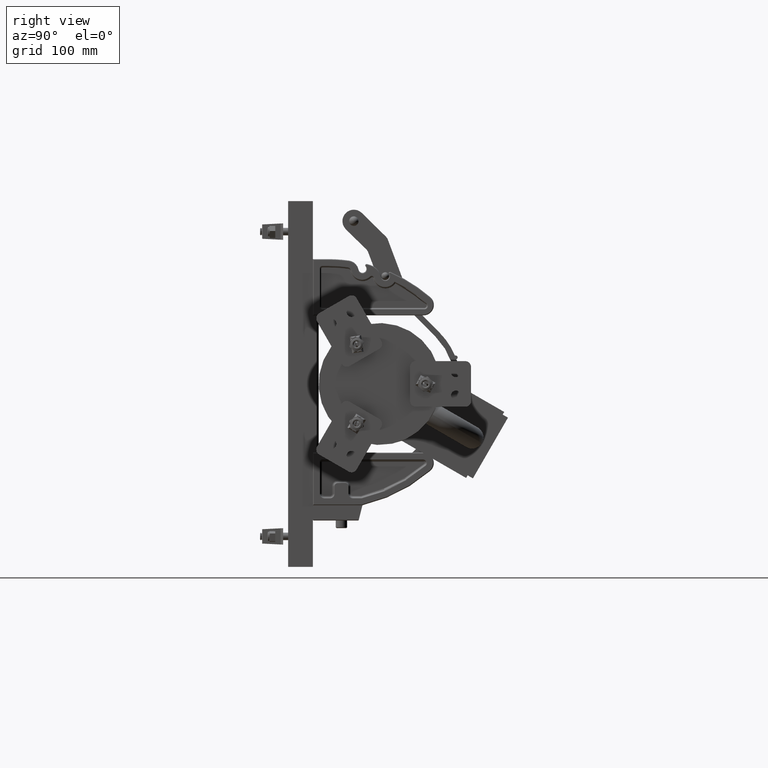
[diagram: clean part render]
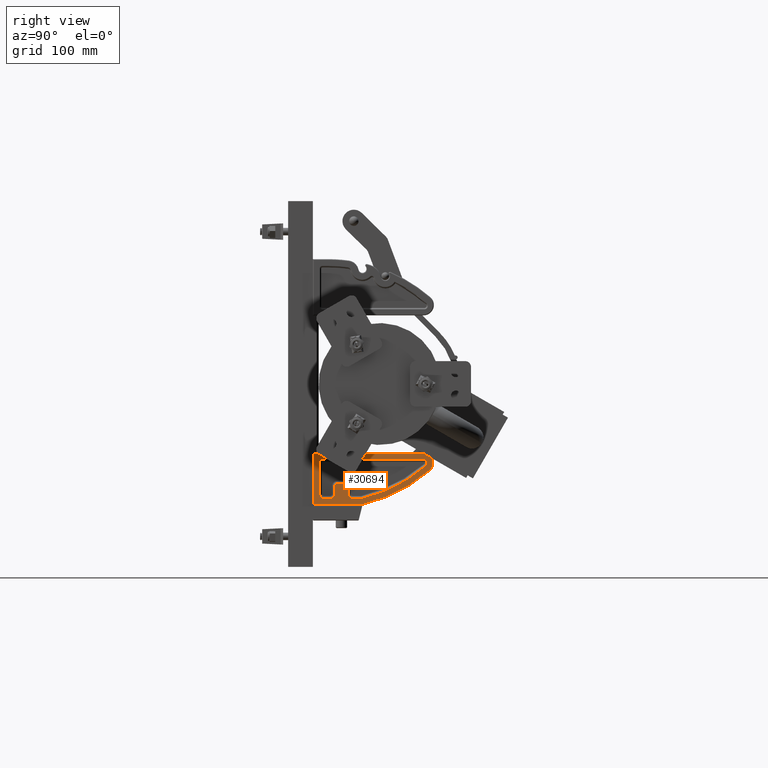
[diagram: same view with one face highlighted and labeled with its STEP entity id]
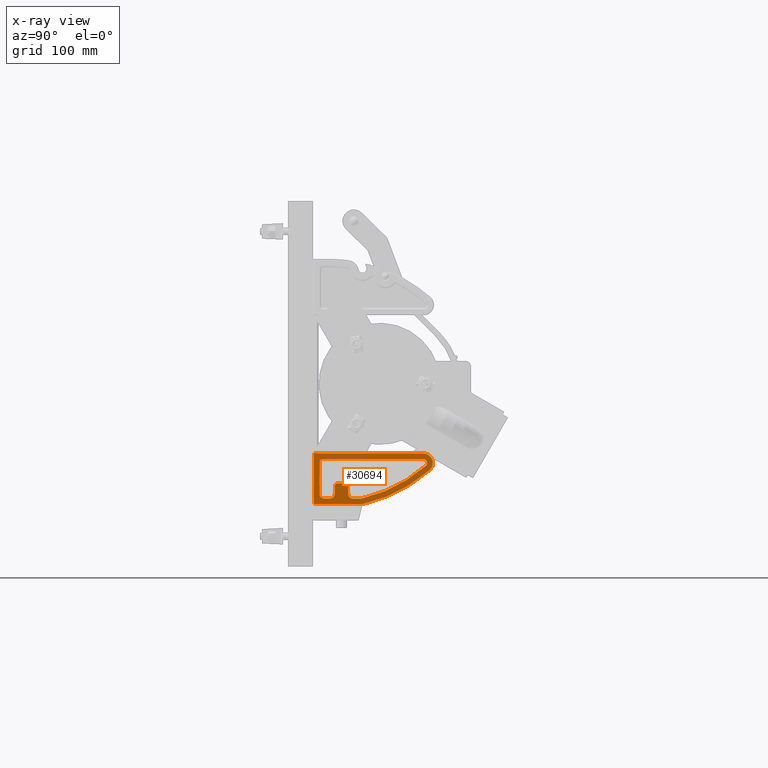
[diagram: x-ray of the same camera — body ghosted, the highlighted face saturated]
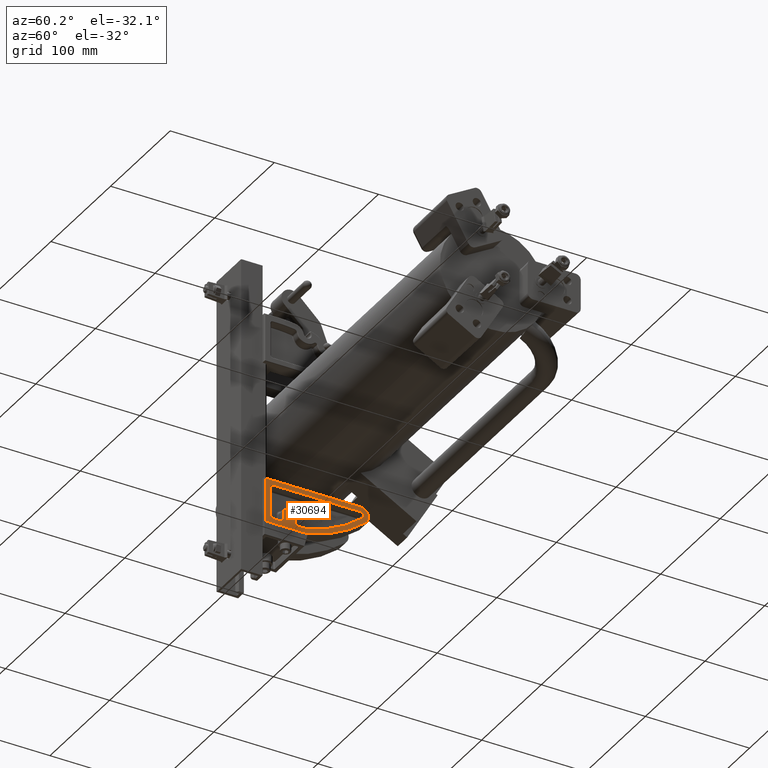
[diagram: same view with one face highlighted and labeled with its STEP entity id]
A machine part, right view. The second image highlights one B-rep face of the part: STEP entity #30694.
The next image is the same camera in x-ray: the body ghosted, the highlighted face saturated — about 13% of this face is hidden behind the body in this view.
A second angle (auxiliary view) of the same face is appended — the face is thin or edge-on in the first view.
In plain terms, the highlighted planar face has unit normal (-1, -0, -0).
Its self-contained STEP definition (entity closure, byte-faithful):
#45 = DIRECTION ( 'NONE',  ( 4.163336342344340500E-016, -1.524114958761115300E-016, 1.000000000000000000 ) ) ;
#829 = CARTESIAN_POINT ( 'NONE',  ( -1.102999999999999800, 1.156250000000000900, -0.9375000000000007800 ) ) ;
#1049 = DIRECTION ( 'NONE',  ( 4.163336342344340500E-016, -1.524114958761115300E-016, 1.000000000000000000 ) ) ;
#1127 = AXIS2_PLACEMENT_3D ( 'NONE', #10826, #40002, #15031 ) ;
#1165 = ORIENTED_EDGE ( 'NONE', *, *, #28824, .T. ) ;
#1475 = CARTESIAN_POINT ( 'NONE',  ( -1.696750000000002600, 0.03124999999999983700, -0.9375000000000007800 ) ) ;
#1682 = VERTEX_POINT ( 'NONE', #30548 ) ;
#1753 = EDGE_LOOP ( 'NONE', ( #4765, #40722, #48207, #4542, #22098, #47519, #10386, #36559, #43806, #10159, #18176, #42143, #26876, #34704, #19824 ) ) ;
#1941 = DIRECTION ( 'NONE',  ( 1.000000000000000000, -6.066697582859821500E-016, 4.163336342344332100E-016 ) ) ;
#2015 = VERTEX_POINT ( 'NONE', #12118 ) ;
#2086 = CARTESIAN_POINT ( 'NONE',  ( 3.250000000000005300, 0.5000000000000006700, -0.9374999999999993300 ) ) ;
#2440 = CARTESIAN_POINT ( 'NONE',  ( -1.102999999999999800, 0.7187500000000003300, -0.9375000000000007800 ) ) ;
#2546 = ORIENTED_EDGE ( 'NONE', *, *, #34521, .T. ) ;
#2563 = DIRECTION ( 'NONE',  ( 1.000000000000000000, 1.757097921636440000E-015, 4.392744804091099900E-016 ) ) ;
#3081 = VECTOR ( 'NONE', #33825, 39.37007874015748100 ) ;
#3385 = CARTESIAN_POINT ( 'NONE',  ( -0.03125000000000038200, 0.5000000000000010000, -0.9375000000000003300 ) ) ;
#3958 = DIRECTION ( 'NONE',  ( 1.000000000000000000, 0.0000000000000000000, 0.0000000000000000000 ) ) ;
#4051 = CARTESIAN_POINT ( 'NONE',  ( -1.009250000000000600, 0.8125000000000004400, -0.9375000000000007800 ) ) ;
#4331 = AXIS2_PLACEMENT_3D ( 'NONE', #19815, #48985, #24006 ) ;
#4380 = LINE ( 'NONE', #21365, #14128 ) ;
#4437 = CARTESIAN_POINT ( 'NONE',  ( -1.009249999999999500, 1.062500000000000700, -0.9375000000000007800 ) ) ;
#4542 = ORIENTED_EDGE ( 'NONE', *, *, #31320, .T. ) ;
#4765 = ORIENTED_EDGE ( 'NONE', *, *, #46852, .T. ) ;
#5049 = CARTESIAN_POINT ( 'NONE',  ( -1.509250000000002400, 0.5624999999999997800, -0.9375000000000007800 ) ) ;
#5097 = CARTESIAN_POINT ( 'NONE',  ( -0.2187499999999999400, 0.3125000000000004400, -0.9375000000000000000 ) ) ;
#6211 = CARTESIAN_POINT ( 'NONE',  ( -1.509250000000002400, 0.3750000000000007800, -0.9375000000000007800 ) ) ;
#6589 = EDGE_CURVE ( 'NONE', #2015, #33392, #23211, .T. ) ;
#6801 = VERTEX_POINT ( 'NONE', #1475 ) ;
#8056 = EDGE_CURVE ( 'NONE', #40696, #54057, #12667, .T. ) ;
#8341 = EDGE_CURVE ( 'NONE', #9683, #39044, #32829, .T. ) ;
#8769 = VECTOR ( 'NONE', #11370, 39.37007874015748100 ) ;
#8818 = LINE ( 'NONE', #28119, #19898 ) ;
#9683 = VERTEX_POINT ( 'NONE', #11389 ) ;
#9750 = ORIENTED_EDGE ( 'NONE', *, *, #10917, .T. ) ;
#9850 = VERTEX_POINT ( 'NONE', #20550 ) ;
#10159 = ORIENTED_EDGE ( 'NONE', *, *, #37065, .T. ) ;
#10386 = ORIENTED_EDGE ( 'NONE', *, *, #13739, .T. ) ;
#10446 = CARTESIAN_POINT ( 'NONE',  ( 3.250000000000005300, 0.03125000000000106900, -0.9374999999999986700 ) ) ;
#10637 = VERTEX_POINT ( 'NONE', #46426 ) ;
#10826 = CARTESIAN_POINT ( 'NONE',  ( 3.250000000000005300, 0.5000000000000006700, -0.9374999999999993300 ) ) ;
#10917 = EDGE_CURVE ( 'NONE', #1682, #6801, #36139, .T. ) ;
#11370 = DIRECTION ( 'NONE',  ( 1.708356423516933500E-015, -1.000000000000000000, 1.524114958761123000E-016 ) ) ;
#11389 = CARTESIAN_POINT ( 'NONE',  ( -0.3125000000000005600, 0.2187500000000000800, -0.9375000000000000000 ) ) ;
#12118 = CARTESIAN_POINT ( 'NONE',  ( -1.353000000000001100, 0.7187499999999995600, -0.9375000000000007800 ) ) ;
#12258 = CIRCLE ( 'NONE', #4331, 0.1562500000000002800 ) ;
#12311 = VERTEX_POINT ( 'NONE', #829 ) ;
#12369 = DIRECTION ( 'NONE',  ( -4.163336342344340500E-016, 1.524114958761115300E-016, -1.000000000000000000 ) ) ;
#12667 = CIRCLE ( 'NONE', #1127, 5.072288870235055900 ) ;
#13739 = EDGE_CURVE ( 'NONE', #18649, #53443, #33941, .T. ) ;
#14128 = VECTOR ( 'NONE', #46345, 39.37007874015748100 ) ;
#15031 = DIRECTION ( 'NONE',  ( 1.000000000000000000, 2.154331556071384400E-016, 4.039371667633845900E-016 ) ) ;
#15607 = VECTOR ( 'NONE', #19965, 39.37007874015748100 ) ;
#16020 = CARTESIAN_POINT ( 'NONE',  ( -0.5767967427319152800, 3.829225296210323900, -0.9375000000000014400 ) ) ;
#17289 = CARTESIAN_POINT ( 'NONE',  ( -1.353000000000001100, 0.3750000000000007800, -0.9375000000000007800 ) ) ;
#18176 = ORIENTED_EDGE ( 'NONE', *, *, #37468, .T. ) ;
#18203 = AXIS2_PLACEMENT_3D ( 'NONE', #46961, #21986, #51142 ) ;
#18483 = CIRCLE ( 'NONE', #18203, 0.09375000000000019400 ) ;
#18649 = VERTEX_POINT ( 'NONE', #4051 ) ;
#18870 = DIRECTION ( 'NONE',  ( -4.163336342344331100E-016, -1.524114958761117500E-016, 1.000000000000000000 ) ) ;
#19815 = CARTESIAN_POINT ( 'NONE',  ( -1.353000000000000600, 1.312499999999998000, -0.9375000000000007800 ) ) ;
#19824 = ORIENTED_EDGE ( 'NONE', *, *, #28458, .T. ) ;
#19898 = VECTOR ( 'NONE', #53110, 39.37007874015748100 ) ;
#19965 = DIRECTION ( 'NONE',  ( -2.138035699409100200E-016, -1.000000000000000000, 1.524114958761114800E-016 ) ) ;
#20550 = CARTESIAN_POINT ( 'NONE',  ( -0.03124999999999983700, 3.625131516786316500, -0.9375000000000010000 ) ) ;
#21365 = CARTESIAN_POINT ( 'NONE',  ( -1.009250000000000600, 0.8125000000000004400, -0.9375000000000007800 ) ) ;
#21370 = CIRCLE ( 'NONE', #36932, 0.1234500000000009800 ) ;
#21375 = CARTESIAN_POINT ( 'NONE',  ( -1.353000000000001100, 0.2187500000000009200, -0.9375000000000007800 ) ) ;
#21486 = DIRECTION ( 'NONE',  ( 1.000000000000000000, 0.0000000000000000000, 0.0000000000000000000 ) ) ;
#21986 = DIRECTION ( 'NONE',  ( -4.163336342344340500E-016, 1.524114958761115300E-016, -1.000000000000000000 ) ) ;
#22098 = ORIENTED_EDGE ( 'NONE', *, *, #50555, .T. ) ;
#22462 = FACE_BOUND ( 'NONE', #1753, .T. ) ;
#23211 = CIRCLE ( 'NONE', #35295, 0.1562500000000002800 ) ;
#23548 = VERTEX_POINT ( 'NONE', #38655 ) ;
#23711 = LINE ( 'NONE', #44125, #45915 ) ;
#23894 = DIRECTION ( 'NONE',  ( 4.163336342344340500E-016, -1.524114958761115300E-016, 1.000000000000000000 ) ) ;
#24006 = DIRECTION ( 'NONE',  ( 1.000000000000000000, 0.0000000000000000000, 0.0000000000000000000 ) ) ;
#24064 = CARTESIAN_POINT ( 'NONE',  ( -1.509250000000002400, 1.600318928434918900, -0.9375000000000014400 ) ) ;
#24933 = VERTEX_POINT ( 'NONE', #44408 ) ;
#25034 = CARTESIAN_POINT ( 'NONE',  ( -0.3125000000000000000, 0.3125000000000000000, -0.9375000000000000000 ) ) ;
#25044 = VECTOR ( 'NONE', #39617, 39.37007874015748100 ) ;
#25341 = EDGE_CURVE ( 'NONE', #53443, #2015, #46844, .T. ) ;
#26006 = CARTESIAN_POINT ( 'NONE',  ( -0.3421999999999999500, 3.625131516786316100, -0.9375000000000007800 ) ) ;
#26116 = CARTESIAN_POINT ( 'NONE',  ( -1.353000000000001100, 0.7187499999999995600, -0.9375000000000007800 ) ) ;
#26152 = EDGE_CURVE ( 'NONE', #40184, #18649, #4380, .T. ) ;
#26876 = ORIENTED_EDGE ( 'NONE', *, *, #8341, .T. ) ;
#27062 = EDGE_CURVE ( 'NONE', #38564, #9683, #40960, .T. ) ;
#27503 = DIRECTION ( 'NONE',  ( -4.163336342344340500E-016, 1.524114958761115300E-016, -1.000000000000000000 ) ) ;
#28119 = CARTESIAN_POINT ( 'NONE',  ( -0.2187499999999988600, 3.625131516786316100, -0.9375000000000007800 ) ) ;
#28458 = EDGE_CURVE ( 'NONE', #53887, #24933, #21370, .T. ) ;
#28824 = EDGE_CURVE ( 'NONE', #6801, #40696, #46119, .T. ) ;
#28897 = DIRECTION ( 'NONE',  ( 4.163336342344340500E-016, -1.524114958761115300E-016, 1.000000000000000000 ) ) ;
#29208 = DIRECTION ( 'NONE',  ( 1.000000000000000000, 0.0000000000000000000, 0.0000000000000000000 ) ) ;
#29849 = VECTOR ( 'NONE', #1941, 39.37007874015748100 ) ;
#30194 = DIRECTION ( 'NONE',  ( 1.000000000000000000, 0.0000000000000000000, 0.0000000000000000000 ) ) ;
#30548 = CARTESIAN_POINT ( 'NONE',  ( -0.03125000000000038200, 0.03124999999999997600, -0.9375000000000003300 ) ) ;
#30694 = ADVANCED_FACE ( 'NONE', ( #22462, #44652 ), #43819, .F. ) ;
#30833 = EDGE_CURVE ( 'NONE', #51503, #23548, #43317, .T. ) ;
#31320 = EDGE_CURVE ( 'NONE', #10637, #12311, #23711, .T. ) ;
#32829 = CIRCLE ( 'NONE', #51429, 0.09375000000000023600 ) ;
#33392 = VERTEX_POINT ( 'NONE', #5049 ) ;
#33825 = DIRECTION ( 'NONE',  ( 4.568984725387799800E-017, 1.000000000000000000, -1.524114958761115600E-016 ) ) ;
#33941 = CIRCLE ( 'NONE', #48656, 0.09375000000000019400 ) ;
#34521 = EDGE_CURVE ( 'NONE', #9850, #1682, #36478, .T. ) ;
#34563 = VECTOR ( 'NONE', #35353, 39.37007874015748100 ) ;
#34704 = ORIENTED_EDGE ( 'NONE', *, *, #49311, .T. ) ;
#35117 = ORIENTED_EDGE ( 'NONE', *, *, #53917, .T. ) ;
#35295 = AXIS2_PLACEMENT_3D ( 'NONE', #53908, #28897, #3958 ) ;
#35353 = DIRECTION ( 'NONE',  ( -2.138035699409100200E-016, -1.000000000000000000, 1.524114958761114800E-016 ) ) ;
#36139 = LINE ( 'NONE', #10446, #25044 ) ;
#36352 = CARTESIAN_POINT ( 'NONE',  ( -1.509250000000000200, 1.312499999999998000, -0.9375000000000014400 ) ) ;
#36478 = LINE ( 'NONE', #3385, #15607 ) ;
#36559 = ORIENTED_EDGE ( 'NONE', *, *, #25341, .T. ) ;
#36932 = AXIS2_PLACEMENT_3D ( 'NONE', #26006, #1049, #30194 ) ;
#37065 = EDGE_CURVE ( 'NONE', #33392, #42139, #46986, .T. ) ;
#37150 = CARTESIAN_POINT ( 'NONE',  ( -1.696750000000002600, 1.621507387675317000, -0.9375000000000014400 ) ) ;
#37340 = CARTESIAN_POINT ( 'NONE',  ( -1.102999999999999800, 0.8125000000000004400, -0.9375000000000007800 ) ) ;
#37468 = EDGE_CURVE ( 'NONE', #42139, #38564, #48920, .T. ) ;
#38564 = VERTEX_POINT ( 'NONE', #21375 ) ;
#38655 = CARTESIAN_POINT ( 'NONE',  ( -1.509250000000001300, 1.312499999999998000, -0.9375000000000014400 ) ) ;
#39044 = VERTEX_POINT ( 'NONE', #5097 ) ;
#39328 = AXIS2_PLACEMENT_3D ( 'NONE', #48878, #23894, #53072 ) ;
#39617 = DIRECTION ( 'NONE',  ( -1.000000000000000000, -3.362642053231469600E-016, -4.163336342344331100E-016 ) ) ;
#40002 = DIRECTION ( 'NONE',  ( -4.163336342344340500E-016, 1.524114958761115300E-016, -1.000000000000000000 ) ) ;
#40184 = VERTEX_POINT ( 'NONE', #4437 ) ;
#40383 = ORIENTED_EDGE ( 'NONE', *, *, #8056, .T. ) ;
#40696 = VERTEX_POINT ( 'NONE', #37150 ) ;
#40722 = ORIENTED_EDGE ( 'NONE', *, *, #30833, .T. ) ;
#40960 = LINE ( 'NONE', #47698, #29849 ) ;
#41537 = DIRECTION ( 'NONE',  ( 1.000000000000000000, 0.0000000000000000000, 0.0000000000000000000 ) ) ;
#42046 = CARTESIAN_POINT ( 'NONE',  ( -1.696750000000002600, 0.4999999999999996100, -0.9375000000000014400 ) ) ;
#42139 = VERTEX_POINT ( 'NONE', #51462 ) ;
#42143 = ORIENTED_EDGE ( 'NONE', *, *, #27062, .T. ) ;
#43259 = EDGE_LOOP ( 'NONE', ( #35117, #2546, #9750, #1165, #40383 ) ) ;
#43317 = LINE ( 'NONE', #36352, #8769 ) ;
#43806 = ORIENTED_EDGE ( 'NONE', *, *, #6589, .T. ) ;
#43819 = PLANE ( 'NONE',  #45419 ) ;
#43867 = AXIS2_PLACEMENT_3D ( 'NONE', #17289, #46465, #21486 ) ;
#44125 = CARTESIAN_POINT ( 'NONE',  ( -1.103000000000000900, 1.156250000000000900, -0.9375000000000007800 ) ) ;
#44408 = CARTESIAN_POINT ( 'NONE',  ( -0.4353370570517935400, 3.706158617831159000, -0.9375000000000007800 ) ) ;
#44652 = FACE_OUTER_BOUND ( 'NONE', #43259, .T. ) ;
#45419 = AXIS2_PLACEMENT_3D ( 'NONE', #2086, #18870, #48029 ) ;
#45535 = VECTOR ( 'NONE', #51118, 39.37007874015748100 ) ;
#45915 = VECTOR ( 'NONE', #52696, 39.37007874015748100 ) ;
#45933 = AXIS2_PLACEMENT_3D ( 'NONE', #52490, #27503, #2563 ) ;
#46119 = LINE ( 'NONE', #42046, #3081 ) ;
#46345 = DIRECTION ( 'NONE',  ( -2.138035699409100200E-016, -1.000000000000000000, 1.524114958761114800E-016 ) ) ;
#46426 = CARTESIAN_POINT ( 'NONE',  ( -1.353000000000000600, 1.156250000000000000, -0.9375000000000007800 ) ) ;
#46465 = DIRECTION ( 'NONE',  ( 4.163336342344340500E-016, -1.524114958761115300E-016, 1.000000000000000000 ) ) ;
#46844 = LINE ( 'NONE', #26116, #45535 ) ;
#46852 = EDGE_CURVE ( 'NONE', #24933, #51503, #47511, .T. ) ;
#46961 = CARTESIAN_POINT ( 'NONE',  ( -1.102999999999999800, 1.062500000000000700, -0.9375000000000007800 ) ) ;
#46986 = LINE ( 'NONE', #6211, #34563 ) ;
#47511 = CIRCLE ( 'NONE', #39328, 4.884788870235056800 ) ;
#47519 = ORIENTED_EDGE ( 'NONE', *, *, #26152, .T. ) ;
#47698 = CARTESIAN_POINT ( 'NONE',  ( -0.3125000000000005600, 0.2187500000000000800, -0.9375000000000000000 ) ) ;
#48029 = DIRECTION ( 'NONE',  ( 1.000000000000000000, 2.138035699409095500E-016, 4.163336342344331600E-016 ) ) ;
#48207 = ORIENTED_EDGE ( 'NONE', *, *, #52923, .T. ) ;
#48656 = AXIS2_PLACEMENT_3D ( 'NONE', #37340, #12369, #41537 ) ;
#48878 = CARTESIAN_POINT ( 'NONE',  ( 3.250000000000005300, 0.5000000000000006700, -0.9374999999999993300 ) ) ;
#48920 = CIRCLE ( 'NONE', #43867, 0.1562500000000002800 ) ;
#48985 = DIRECTION ( 'NONE',  ( 4.163336342344340500E-016, -1.524114958761115300E-016, 1.000000000000000000 ) ) ;
#49311 = EDGE_CURVE ( 'NONE', #39044, #53887, #8818, .T. ) ;
#50121 = CIRCLE ( 'NONE', #45933, 0.3109500000000009500 ) ;
#50555 = EDGE_CURVE ( 'NONE', #12311, #40184, #18483, .T. ) ;
#51118 = DIRECTION ( 'NONE',  ( -1.000000000000000000, -2.138035699409095300E-016, -4.163336342344331100E-016 ) ) ;
#51142 = DIRECTION ( 'NONE',  ( 1.000000000000000000, 0.0000000000000000000, 0.0000000000000000000 ) ) ;
#51429 = AXIS2_PLACEMENT_3D ( 'NONE', #25034, #45, #29208 ) ;
#51462 = CARTESIAN_POINT ( 'NONE',  ( -1.509250000000002400, 0.3750000000000007800, -0.9375000000000007800 ) ) ;
#51503 = VERTEX_POINT ( 'NONE', #24064 ) ;
#52309 = CARTESIAN_POINT ( 'NONE',  ( -0.2187499999999988600, 3.625131516786316100, -0.9375000000000007800 ) ) ;
#52490 = CARTESIAN_POINT ( 'NONE',  ( -0.3421999999999999500, 3.625131516786316100, -0.9375000000000007800 ) ) ;
#52696 = DIRECTION ( 'NONE',  ( 1.000000000000000000, 2.138035699409095300E-016, 4.163336342344331100E-016 ) ) ;
#52923 = EDGE_CURVE ( 'NONE', #23548, #10637, #12258, .T. ) ;
#53072 = DIRECTION ( 'NONE',  ( 1.000000000000000000, 2.097210390947362000E-016, 4.194420781894724100E-016 ) ) ;
#53110 = DIRECTION ( 'NONE',  ( 6.055247107967440600E-016, 1.000000000000000000, -1.524114958761113600E-016 ) ) ;
#53443 = VERTEX_POINT ( 'NONE', #2440 ) ;
#53887 = VERTEX_POINT ( 'NONE', #52309 ) ;
#53908 = CARTESIAN_POINT ( 'NONE',  ( -1.353000000000001100, 0.5624999999999997800, -0.9375000000000007800 ) ) ;
#53917 = EDGE_CURVE ( 'NONE', #54057, #9850, #50121, .T. ) ;
#54057 = VERTEX_POINT ( 'NONE', #16020 ) ;